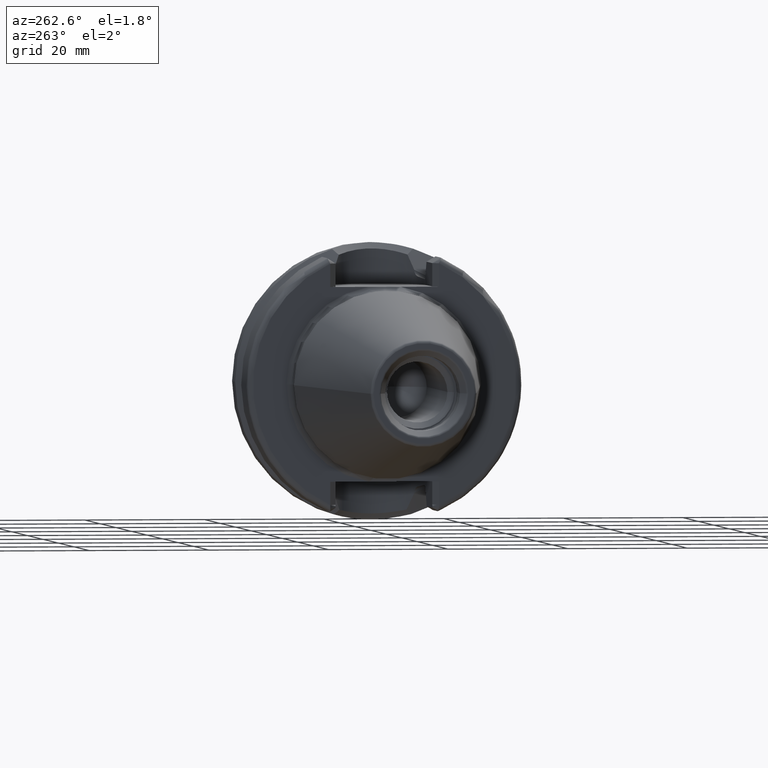
[diagram: clean part render]
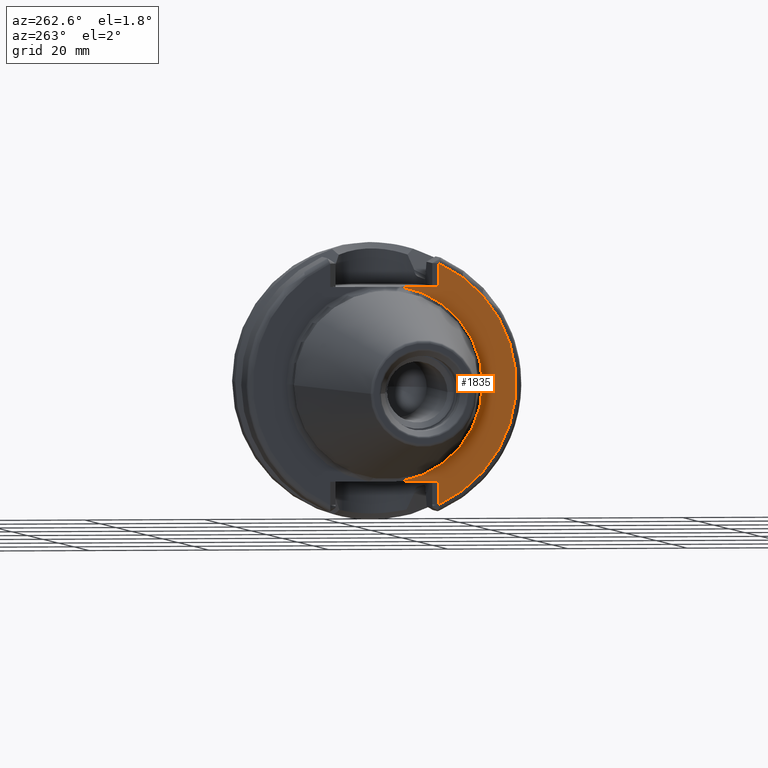
[diagram: same view with one face highlighted and labeled with its STEP entity id]
A machine part, auxiliary view. The second image highlights one B-rep face of the part: STEP entity #1835.
In plain terms, the highlighted planar face has unit normal (1, 0, 0).
Its self-contained STEP definition (entity closure, byte-faithful):
#111=CARTESIAN_POINT('',(2.E0,0.E0,0.E0));
#112=DIRECTION('',(-1.E0,0.E0,0.E0));
#113=DIRECTION('',(0.E0,-1.652032561545E-1,-9.862595419847E-1));
#114=AXIS2_PLACEMENT_3D('',#111,#112,#113);
#135=DIRECTION('',(-4.744939476094E-6,4.745345851447E-6,-9.999999999775E-1));
#136=VECTOR('',#135,3.871014231904E0);
#137=CARTESIAN_POINT('',(2.E0,-9.095E0,-1.615E1));
#138=LINE('',#137,#136);
#139=DIRECTION('',(7.287242153190E-6,-7.289057608312E-6,-9.999999999469E-1));
#140=VECTOR('',#139,3.871026255551E0);
#141=CARTESIAN_POINT('',(1.999971790894E0,-9.094971783867E0,2.002102625535E1));
#142=LINE('',#141,#140);
#603=CARTESIAN_POINT('',(1.999981632272E0,-9.094981630699E0,-2.002101423182E1));
#614=CARTESIAN_POINT('',(2.E0,0.E0,0.E0));
#615=DIRECTION('',(-1.E0,0.E0,0.E0));
#616=DIRECTION('',(0.E0,-4.135972017393E-1,-9.104599687594E-1));
#617=AXIS2_PLACEMENT_3D('',#614,#615,#616);
#670=DIRECTION('',(0.E0,1.E0,0.E0));
#671=VECTOR('',#670,6.389796680469E0);
#672=CARTESIAN_POINT('',(2.E0,-9.095E0,1.615E1));
#673=LINE('',#672,#671);
#711=CARTESIAN_POINT('',(2.E0,0.E0,0.E0));
#712=DIRECTION('',(1.E0,0.E0,0.E0));
#713=DIRECTION('',(0.E0,-1.652032561545E-1,9.862595419847E-1));
#714=AXIS2_PLACEMENT_3D('',#711,#712,#713);
#736=DIRECTION('',(0.E0,-1.E0,0.E0));
#737=VECTOR('',#736,6.389796680469E0);
#738=CARTESIAN_POINT('',(2.E0,-2.705203319531E0,-1.615E1));
#739=LINE('',#738,#737);
#1422=CARTESIAN_POINT('',(2.E0,-1.6375E1,0.E0));
#1424=VERTEX_POINT('',#1422);
#1488=CARTESIAN_POINT('',(2.E0,-2.705203319531E0,1.615E1));
#1489=VERTEX_POINT('',#1488);
#1496=CARTESIAN_POINT('',(2.E0,-2.705203319531E0,-1.615E1));
#1497=VERTEX_POINT('',#1496);
#1522=CARTESIAN_POINT('',(1.999971790894E0,-9.094971783867E0,2.002102625535E1));
#1523=CARTESIAN_POINT('',(2.E0,-9.095E0,1.615E1));
#1524=VERTEX_POINT('',#1522);
#1525=VERTEX_POINT('',#1523);
#1547=VERTEX_POINT('',#603);
#1549=CARTESIAN_POINT('',(2.E0,-9.095E0,-1.615E1));
#1550=VERTEX_POINT('',#1549);
#1815=CARTESIAN_POINT('',(2.E0,0.E0,0.E0));
#1816=DIRECTION('',(1.E0,0.E0,0.E0));
#1817=DIRECTION('',(0.E0,-1.E0,0.E0));
#1818=AXIS2_PLACEMENT_3D('',#1815,#1816,#1817);
#1819=PLANE('',#1818);
#1821=ORIENTED_EDGE('',*,*,#1820,.F.);
#1823=ORIENTED_EDGE('',*,*,#1822,.F.);
#1824=ORIENTED_EDGE('',*,*,#1787,.T.);
#1826=ORIENTED_EDGE('',*,*,#1825,.F.);
#1828=ORIENTED_EDGE('',*,*,#1827,.F.);
#1830=ORIENTED_EDGE('',*,*,#1829,.F.);
#1832=ORIENTED_EDGE('',*,*,#1831,.F.);
#1833=EDGE_LOOP('',(#1821,#1823,#1824,#1826,#1828,#1830,#1832));
#1834=FACE_OUTER_BOUND('',#1833,.F.);
#1835=ADVANCED_FACE('',(#1834),#1819,.F.);
#115=CIRCLE('',#114,1.6375E1);
#618=CIRCLE('',#617,2.199E1);
#715=CIRCLE('',#714,1.6375E1);
#1787=EDGE_CURVE('',#1497,#1424,#115,.T.);
#1820=EDGE_CURVE('',#1550,#1547,#138,.T.);
#1822=EDGE_CURVE('',#1497,#1550,#739,.T.);
#1825=EDGE_CURVE('',#1489,#1424,#715,.T.);
#1827=EDGE_CURVE('',#1525,#1489,#673,.T.);
#1829=EDGE_CURVE('',#1524,#1525,#142,.T.);
#1831=EDGE_CURVE('',#1547,#1524,#618,.T.);